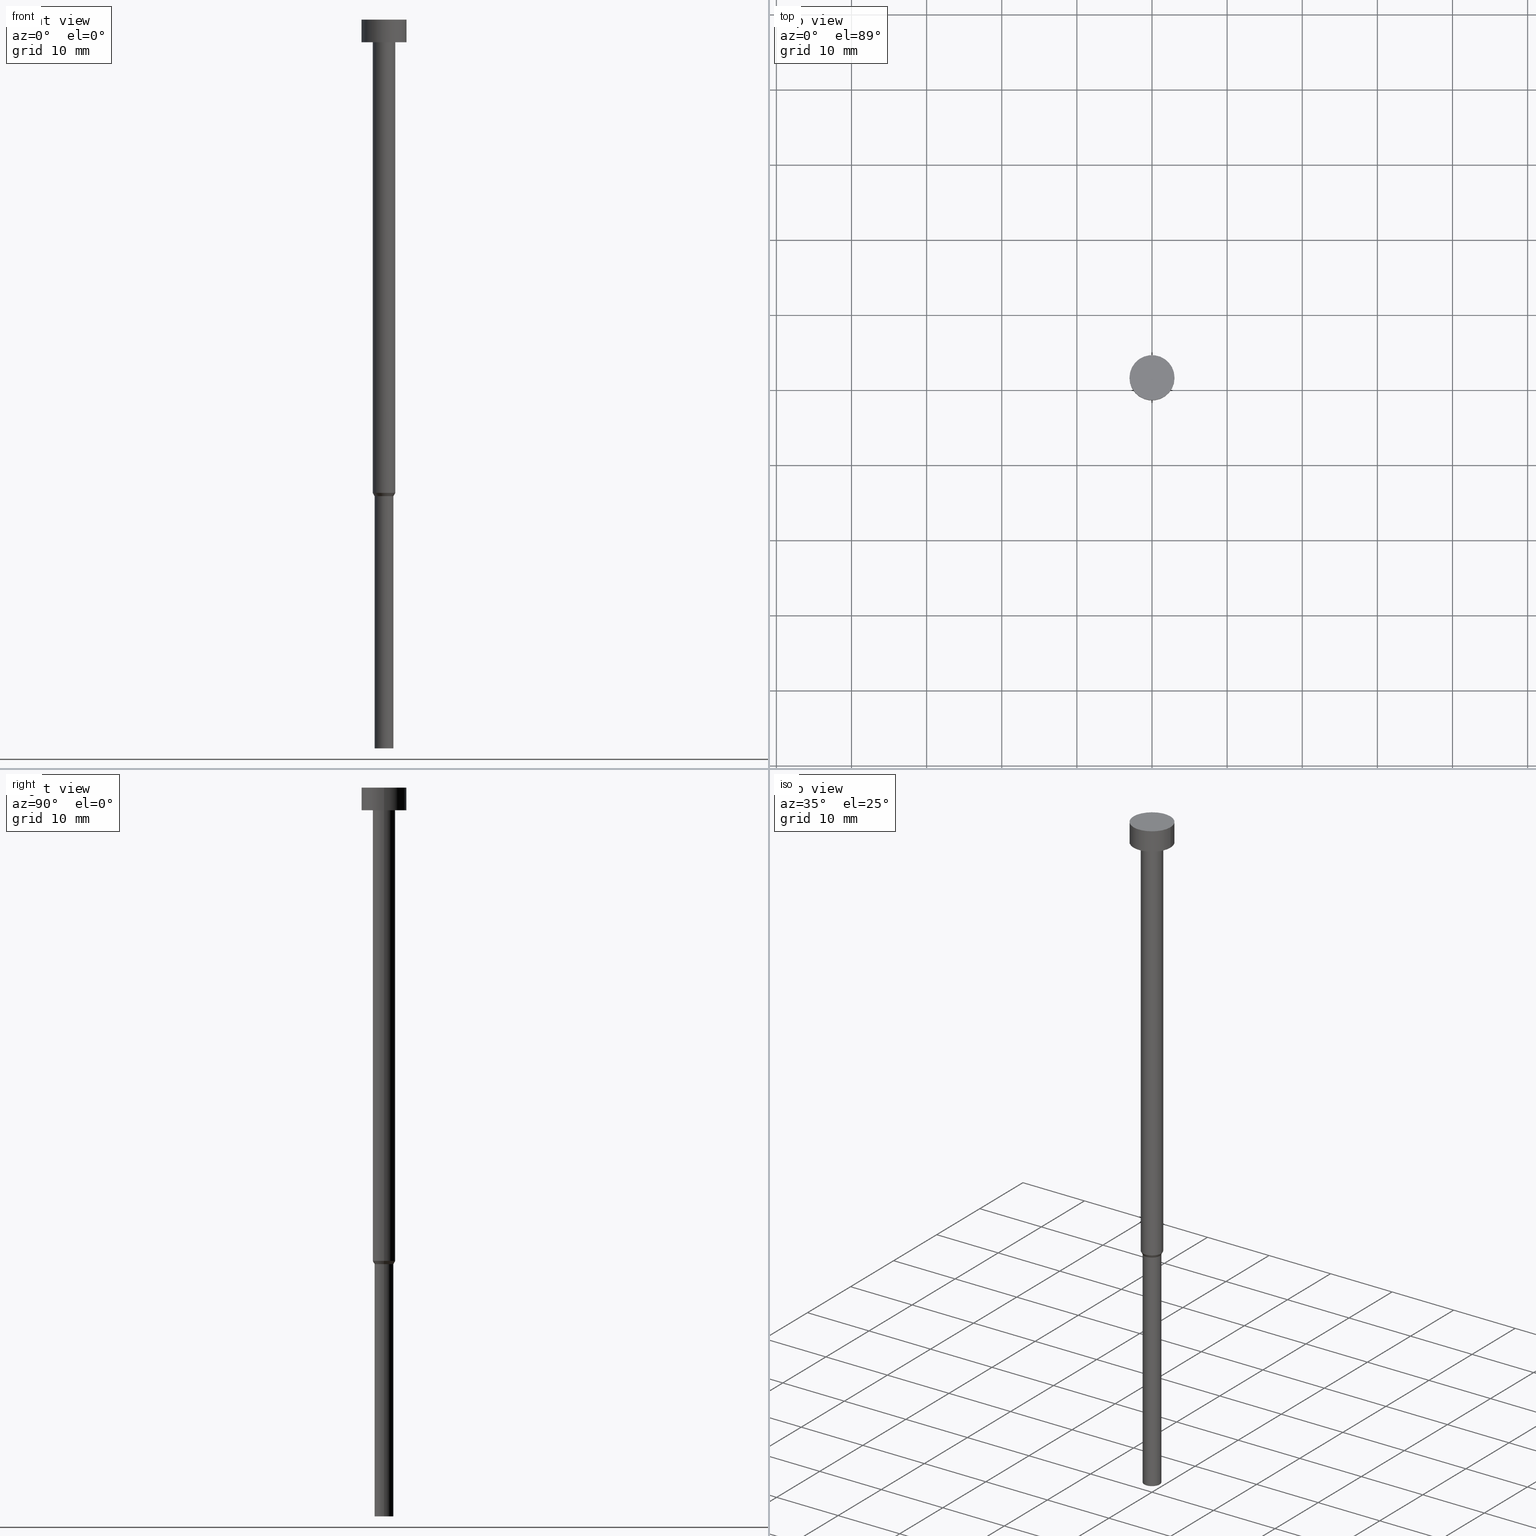
[diagram: canonical four-view strip — front | top / right | iso, engineering-drawing reading convention]
A machine part, canonical four-view strip (front | top / right | iso — engineering-drawing reading convention). The complete STEP part file that produces these views, byte-faithful:
ISO-10303-21;
HEADER;
FILE_DESCRIPTION (( 'STEP AP203' ),
    '1' );
FILE_NAME ('b03c.STEP',
    '2023-02-13T08:58:11',
    ( '' ),
    ( '' ),
    'SwSTEP 2.0',
    'SolidWorks 2019',
    '' );
FILE_SCHEMA (( 'CONFIG_CONTROL_DESIGN' ));
ENDSEC;

DATA;
#1 = CARTESIAN_POINT ( 'NONE',  ( 0.000000000000000000, 0.000000000000000000, -63.43301270189222407 ) ) ;
#2 = DIRECTION ( 'NONE',  ( -0.000000000000000000, -0.000000000000000000, 1.000000000000000000 ) ) ;
#3 = VERTEX_POINT ( 'NONE', #273 ) ;
#4 = AXIS2_PLACEMENT_3D ( 'NONE', #122, #143, #354 ) ;
#5 = CARTESIAN_POINT ( 'NONE',  ( -1.500000000000000000, 1.836970198721029934E-16, -3.000000000000000444 ) ) ;
#6 = APPLICATION_CONTEXT ( 'configuration controlled 3d designs of mechanical parts and assemblies' ) ;
#7 = ORIENTED_EDGE ( 'NONE', *, *, #355, .T. ) ;
#8 = DIRECTION ( 'NONE',  ( -0.000000000000000000, -0.000000000000000000, 1.000000000000000000 ) ) ;
#9 = DIRECTION ( 'NONE',  ( -0.000000000000000000, -0.000000000000000000, 1.000000000000000000 ) ) ;
#10 = CC_DESIGN_PERSON_AND_ORGANIZATION_ASSIGNMENT ( #333, #230, ( #262 ) ) ;
#11 = CARTESIAN_POINT ( 'NONE',  ( 3.000000000000000000, 0.000000000000000000, 0.000000000000000000 ) ) ;
#12 = AXIS2_PLACEMENT_3D ( 'NONE', #165, #223, #199 ) ;
#13 = ORIENTED_EDGE ( 'NONE', *, *, #355, .F. ) ;
#14 = ORIENTED_EDGE ( 'NONE', *, *, #34, .T. ) ;
#15 = ORIENTED_EDGE ( 'NONE', *, *, #261, .T. ) ;
#16 = CC_DESIGN_PERSON_AND_ORGANIZATION_ASSIGNMENT ( #28, #309, ( #256 ) ) ;
#17 = ORIENTED_EDGE ( 'NONE', *, *, #173, .T. ) ;
#18 = CC_DESIGN_SECURITY_CLASSIFICATION ( #262, ( #256 ) ) ;
#19 = CC_DESIGN_PERSON_AND_ORGANIZATION_ASSIGNMENT ( #137, #41, ( #85 ) ) ;
#20 = DIRECTION ( 'NONE',  ( -0.000000000000000000, -0.000000000000000000, 1.000000000000000000 ) ) ;
#21 = EDGE_CURVE ( 'NONE', #190, #239, #353, .T. ) ;
#22 = CARTESIAN_POINT ( 'NONE',  ( 1.500000000000000000, 0.000000000000000000, -63.00000000000000000 ) ) ;
#23 = CARTESIAN_POINT ( 'NONE',  ( 0.000000000000000000, 0.000000000000000000, 0.000000000000000000 ) ) ;
#24 = DIRECTION ( 'NONE',  ( -0.000000000000000000, -0.000000000000000000, 1.000000000000000000 ) ) ;
#25 = PLANE ( 'NONE',  #86 ) ;
#26 = CYLINDRICAL_SURFACE ( 'NONE', #115, 3.000000000000000000 ) ;
#27 = CARTESIAN_POINT ( 'NONE',  ( 0.000000000000000000, 0.000000000000000000, 0.000000000000000000 ) ) ;
#28 = PERSON_AND_ORGANIZATION ( #187, #294 ) ;
#29 = MANIFOLD_SOLID_BREP ( 'Rotovat1', #237 ) ;
#30 = CARTESIAN_POINT ( 'NONE',  ( 0.000000000000000000, 0.000000000000000000, -63.00000000000000000 ) ) ;
#31 = APPROVAL_DATE_TIME ( #288, #340 ) ;
#32 = ORIENTED_EDGE ( 'NONE', *, *, #235, .T. ) ;
#33 = LOCAL_TIME ( 9, 58, 11.00000000000000000, #233 ) ;
#34 = EDGE_CURVE ( 'NONE', #245, #99, #146, .T. ) ;
#35 = ORIENTED_EDGE ( 'NONE', *, *, #240, .T. ) ;
#36 = ORIENTED_EDGE ( 'NONE', *, *, #184, .F. ) ;
#37 = EDGE_CURVE ( 'NONE', #133, #190, #311, .T. ) ;
#38 = ORIENTED_EDGE ( 'NONE', *, *, #119, .F. ) ;
#39 = CARTESIAN_POINT ( 'NONE',  ( -1.250000000000000000, 1.530808498934191571E-16, -97.00000000000000000 ) ) ;
#40 = ORIENTED_EDGE ( 'NONE', *, *, #192, .F. ) ;
#41 = PERSON_AND_ORGANIZATION_ROLE ( 'design_owner' ) ;
#42 = CARTESIAN_POINT ( 'NONE',  ( 0.000000000000000000, 0.000000000000000000, -97.00000000000000000 ) ) ;
#43 = APPROVAL_ROLE ( '' ) ;
#44 = CIRCLE ( 'NONE', #228, 1.250000000000000000 ) ;
#45 = LOCAL_TIME ( 9, 58, 11.00000000000000000, #312 ) ;
#46 = CC_DESIGN_DATE_AND_TIME_ASSIGNMENT ( #283, #290, ( #262 ) ) ;
#47 = CARTESIAN_POINT ( 'NONE',  ( 0.000000000000000000, 0.000000000000000000, -97.00000000000000000 ) ) ;
#48 = CARTESIAN_POINT ( 'NONE',  ( 0.000000000000000000, 0.000000000000000000, -97.00000000000000000 ) ) ;
#49 = DIRECTION ( 'NONE',  ( -0.000000000000000000, -0.000000000000000000, 1.000000000000000000 ) ) ;
#50 = ADVANCED_FACE ( 'NONE', ( #109 ), #352, .T. ) ;
#51 = DIRECTION ( 'NONE',  ( -0.000000000000000000, -0.000000000000000000, 1.000000000000000000 ) ) ;
#52 = APPROVAL_PERSON_ORGANIZATION ( #220, #106, #43 ) ;
#53 = CARTESIAN_POINT ( 'NONE',  ( 0.000000000000000000, 0.000000000000000000, -3.673940397442059868E-16 ) ) ;
#54 = CARTESIAN_POINT ( 'NONE',  ( 3.000000000000000000, 0.000000000000000000, -3.000000000000000444 ) ) ;
#55 = CARTESIAN_POINT ( 'NONE',  ( 1.250000000000000000, 0.000000000000000000, 0.000000000000000000 ) ) ;
#56 = DIRECTION ( 'NONE',  ( -0.000000000000000000, -0.000000000000000000, 1.000000000000000000 ) ) ;
#57 = DIRECTION ( 'NONE',  ( -0.000000000000000000, -0.000000000000000000, 1.000000000000000000 ) ) ;
#58 = ORIENTED_EDGE ( 'NONE', *, *, #301, .F. ) ;
#59 = LOCAL_TIME ( 9, 58, 11.00000000000000000, #242 ) ;
#60 = VERTEX_POINT ( 'NONE', #327 ) ;
#61 = EDGE_CURVE ( 'NONE', #253, #3, #163, .T. ) ;
#62 = CYLINDRICAL_SURFACE ( 'NONE', #319, 1.500000000000000000 ) ;
#63 = EDGE_LOOP ( 'NONE', ( #260, #186, #193, #295 ) ) ;
#64 = AXIS2_PLACEMENT_3D ( 'NONE', #30, #84, #336 ) ;
#65 =( GEOMETRIC_REPRESENTATION_CONTEXT ( 3 ) GLOBAL_UNCERTAINTY_ASSIGNED_CONTEXT ( ( #268 ) ) GLOBAL_UNIT_ASSIGNED_CONTEXT ( ( #102, #156, #205 ) ) REPRESENTATION_CONTEXT ( 'NONE', 'WORKASPACE' ) );
#66 = LINE ( 'NONE', #215, #238 ) ;
#67 = SHAPE_DEFINITION_REPRESENTATION ( #323, #280 ) ;
#68 = CARTESIAN_POINT ( 'NONE',  ( 0.000000000000000000, 0.000000000000000000, 0.000000000000000000 ) ) ;
#69 = DIRECTION ( 'NONE',  ( 0.4999999999999981681, 0.000000000000000000, 0.8660254037844395958 ) ) ;
#70 = CIRCLE ( 'NONE', #176, 1.500000000000000000 ) ;
#71 = VERTEX_POINT ( 'NONE', #279 ) ;
#72 = DIRECTION ( 'NONE',  ( -0.000000000000000000, -0.000000000000000000, 1.000000000000000000 ) ) ;
#73 = DIRECTION ( 'NONE',  ( 1.000000000000000000, 0.000000000000000000, 0.000000000000000000 ) ) ;
#74 = AXIS2_PLACEMENT_3D ( 'NONE', #167, #139, #224 ) ;
#75 = AXIS2_PLACEMENT_3D ( 'NONE', #211, #308, #152 ) ;
#76 = DIRECTION ( 'NONE',  ( 0.000000000000000000, 0.000000000000000000, -1.000000000000000000 ) ) ;
#77 = CARTESIAN_POINT ( 'NONE',  ( -1.500000000000000000, 1.836970198721029934E-16, 0.000000000000000000 ) ) ;
#78 = EDGE_CURVE ( 'NONE', #99, #3, #82, .T. ) ;
#79 = PERSON_AND_ORGANIZATION_ROLE ( 'creator' ) ;
#80 = DIRECTION ( 'NONE',  ( -0.000000000000000000, -0.000000000000000000, 1.000000000000000000 ) ) ;
#81 = CARTESIAN_POINT ( 'NONE',  ( -1.500000000000000000, 1.836970198721029934E-16, -63.00000000000000000 ) ) ;
#82 = LINE ( 'NONE', #196, #188 ) ;
#83 = CARTESIAN_POINT ( 'NONE',  ( 0.000000000000000000, 0.000000000000000000, -63.43301270189222407 ) ) ;
#84 = DIRECTION ( 'NONE',  ( -0.000000000000000000, -0.000000000000000000, 1.000000000000000000 ) ) ;
#85 = PRODUCT ( 'b03c', 'b03c', '', ( #322 ) ) ;
#86 = AXIS2_PLACEMENT_3D ( 'NONE', #149, #254, #154 ) ;
#87 = COORDINATED_UNIVERSAL_TIME_OFFSET ( 1, 0, .AHEAD. ) ;
#88 = ORIENTED_EDGE ( 'NONE', *, *, #159, .F. ) ;
#89 = CIRCLE ( 'NONE', #151, 1.500000000000000000 ) ;
#90 = APPROVAL_PERSON_ORGANIZATION ( #284, #340, #212 ) ;
#91 = DIRECTION ( 'NONE',  ( 1.000000000000000000, 0.000000000000000000, 0.000000000000000000 ) ) ;
#92 = ORIENTED_EDGE ( 'NONE', *, *, #37, .F. ) ;
#93 = EDGE_CURVE ( 'NONE', #133, #132, #171, .T. ) ;
#94 = DIRECTION ( 'NONE',  ( -0.000000000000000000, -0.000000000000000000, 1.000000000000000000 ) ) ;
#95 = CARTESIAN_POINT ( 'NONE',  ( 0.000000000000000000, 0.000000000000000000, 0.000000000000000000 ) ) ;
#96 = AXIS2_PLACEMENT_3D ( 'NONE', #304, #306, #206 ) ;
#97 = EDGE_LOOP ( 'NONE', ( #36, #124, #32, #88 ) ) ;
#98 = CONICAL_SURFACE ( 'NONE', #127, 1.500000000000000000, 0.5235987755982968173 ) ;
#99 = VERTEX_POINT ( 'NONE', #303 ) ;
#100 = ORIENTED_EDGE ( 'NONE', *, *, #173, .F. ) ;
#101 = CARTESIAN_POINT ( 'NONE',  ( -1.250000000000000000, 1.530808498934191571E-16, 0.000000000000000000 ) ) ;
#102 =( LENGTH_UNIT ( ) NAMED_UNIT ( * ) SI_UNIT ( .MILLI., .METRE. ) );
#103 = DATE_AND_TIME ( #249, #219 ) ;
#104 = APPROVAL_ROLE ( '' ) ;
#105 = LINE ( 'NONE', #55, #182 ) ;
#106 = APPROVAL ( #348, 'NEUR�EN�' ) ;
#107 = DIRECTION ( 'NONE',  ( 1.000000000000000000, 0.000000000000000000, 0.000000000000000000 ) ) ;
#108 = PERSON_AND_ORGANIZATION_ROLE ( 'design_supplier' ) ;
#109 = FACE_OUTER_BOUND ( 'NONE', #97, .T. ) ;
#110 = CYLINDRICAL_SURFACE ( 'NONE', #255, 1.250000000000000000 ) ;
#111 = EDGE_LOOP ( 'NONE', ( #126, #157, #13, #269 ) ) ;
#112 = DIRECTION ( 'NONE',  ( 0.000000000000000000, -0.000000000000000000, 1.000000000000000000 ) ) ;
#113 = CALENDAR_DATE ( 2023, 13, 2 ) ;
#114 = DIRECTION ( 'NONE',  ( -0.000000000000000000, -0.000000000000000000, 1.000000000000000000 ) ) ;
#115 = AXIS2_PLACEMENT_3D ( 'NONE', #27, #8, #285 ) ;
#116 = DIRECTION ( 'NONE',  ( 1.000000000000000000, 0.000000000000000000, 0.000000000000000000 ) ) ;
#117 = CC_DESIGN_APPROVAL ( #274, ( #148 ) ) ;
#118 = ORIENTED_EDGE ( 'NONE', *, *, #78, .T. ) ;
#119 = EDGE_CURVE ( 'NONE', #202, #71, #232, .T. ) ;
#120 = CARTESIAN_POINT ( 'NONE',  ( 0.000000000000000000, 0.000000000000000000, -3.673940397442059868E-16 ) ) ;
#121 = SECURITY_CLASSIFICATION_LEVEL ( 'unclassified' ) ;
#122 = CARTESIAN_POINT ( 'NONE',  ( 0.000000000000000000, 0.000000000000000000, -63.00000000000000000 ) ) ;
#123 = ORIENTED_EDGE ( 'NONE', *, *, #159, .T. ) ;
#124 = ORIENTED_EDGE ( 'NONE', *, *, #119, .T. ) ;
#125 = VECTOR ( 'NONE', #326, 1000.000000000000000 ) ;
#126 = ORIENTED_EDGE ( 'NONE', *, *, #192, .T. ) ;
#127 = AXIS2_PLACEMENT_3D ( 'NONE', #147, #51, #116 ) ;
#128 = DIRECTION ( 'NONE',  ( 1.000000000000000000, 0.000000000000000000, 0.000000000000000000 ) ) ;
#129 = CC_DESIGN_APPROVAL ( #340, ( #262 ) ) ;
#130 = CC_DESIGN_PERSON_AND_ORGANIZATION_ASSIGNMENT ( #198, #108, ( #256 ) ) ;
#131 = EDGE_LOOP ( 'NONE', ( #40, #38 ) ) ;
#132 = VERTEX_POINT ( 'NONE', #331 ) ;
#133 = VERTEX_POINT ( 'NONE', #22 ) ;
#134 = APPROVAL_STATUS ( 'not_yet_approved' ) ;
#135 = ADVANCED_FACE ( 'NONE', ( #142 ), #278, .T. ) ;
#136 = EDGE_LOOP ( 'NONE', ( #271, #266, #263, #318 ) ) ;
#137 = PERSON_AND_ORGANIZATION ( #187, #294 ) ;
#138 = PLANE ( 'NONE',  #305 ) ;
#139 = DIRECTION ( 'NONE',  ( -0.000000000000000000, -0.000000000000000000, 1.000000000000000000 ) ) ;
#140 = AXIS2_PLACEMENT_3D ( 'NONE', #120, #153, #329 ) ;
#141 = COORDINATED_UNIVERSAL_TIME_OFFSET ( 1, 0, .AHEAD. ) ;
#142 = FACE_OUTER_BOUND ( 'NONE', #316, .T. ) ;
#143 = DIRECTION ( 'NONE',  ( -0.000000000000000000, -0.000000000000000000, 1.000000000000000000 ) ) ;
#144 = DIRECTION ( 'NONE',  ( -0.000000000000000000, -0.000000000000000000, 1.000000000000000000 ) ) ;
#145 = DIRECTION ( 'NONE',  ( 1.000000000000000000, 0.000000000000000000, 0.000000000000000000 ) ) ;
#146 = CIRCLE ( 'NONE', #96, 3.000000000000000000 ) ;
#147 = CARTESIAN_POINT ( 'NONE',  ( 0.000000000000000000, 0.000000000000000000, -63.00000000000000000 ) ) ;
#148 = PRODUCT_DEFINITION ( 'NEZN�M�', '', #256, #160 ) ;
#149 = CARTESIAN_POINT ( 'NONE',  ( 0.000000000000000000, -3.000000000000000000, -3.000000000000000444 ) ) ;
#150 = DIRECTION ( 'NONE',  ( -0.4999999999999981681, 6.123233995736742617E-17, 0.8660254037844395958 ) ) ;
#151 = AXIS2_PLACEMENT_3D ( 'NONE', #302, #166, #107 ) ;
#152 = DIRECTION ( 'NONE',  ( 1.000000000000000000, 0.000000000000000000, 0.000000000000000000 ) ) ;
#153 = DIRECTION ( 'NONE',  ( -0.000000000000000000, -0.000000000000000000, 1.000000000000000000 ) ) ;
#154 = DIRECTION ( 'NONE',  ( -1.000000000000000000, 0.000000000000000000, -0.000000000000000000 ) ) ;
#155 = VECTOR ( 'NONE', #150, 1000.000000000000114 ) ;
#156 =( NAMED_UNIT ( * ) PLANE_ANGLE_UNIT ( ) SI_UNIT ( $, .RADIAN. ) );
#157 = ORIENTED_EDGE ( 'NONE', *, *, #184, .T. ) ;
#158 = EDGE_LOOP ( 'NONE', ( #209, #123, #185, #234 ) ) ;
#159 = EDGE_CURVE ( 'NONE', #60, #335, #350, .T. ) ;
#160 = DESIGN_CONTEXT ( 'detailed design', #6, 'design' ) ;
#161 = ADVANCED_FACE ( 'NONE', ( #307, #174 ), #25, .T. ) ;
#162 = PERSON_AND_ORGANIZATION ( #187, #294 ) ;
#163 = CIRCLE ( 'NONE', #275, 3.000000000000000000 ) ;
#164 = DIRECTION ( 'NONE',  ( 1.000000000000000000, 0.000000000000000000, 0.000000000000000000 ) ) ;
#165 = CARTESIAN_POINT ( 'NONE',  ( 0.000000000000000000, 0.000000000000000000, 0.000000000000000000 ) ) ;
#166 = DIRECTION ( 'NONE',  ( -0.000000000000000000, -0.000000000000000000, 1.000000000000000000 ) ) ;
#167 = CARTESIAN_POINT ( 'NONE',  ( 0.000000000000000000, 0.000000000000000000, -63.00000000000000000 ) ) ;
#168 = VECTOR ( 'NONE', #94, 1000.000000000000000 ) ;
#169 = DIRECTION ( 'NONE',  ( 1.000000000000000000, 0.000000000000000000, 0.000000000000000000 ) ) ;
#170 = CIRCLE ( 'NONE', #64, 1.500000000000000000 ) ;
#171 = LINE ( 'NONE', #252, #221 ) ;
#172 = CARTESIAN_POINT ( 'NONE',  ( 0.000000000000000000, 0.000000000000000000, 0.000000000000000000 ) ) ;
#173 = EDGE_CURVE ( 'NONE', #245, #253, #231, .T. ) ;
#174 = FACE_OUTER_BOUND ( 'NONE', #213, .T. ) ;
#175 = DIRECTION ( 'NONE',  ( 1.000000000000000000, 0.000000000000000000, 0.000000000000000000 ) ) ;
#176 = AXIS2_PLACEMENT_3D ( 'NONE', #229, #57, #91 ) ;
#177 = APPLICATION_PROTOCOL_DEFINITION ( 'international standard', 'config_control_design', 1994, #324 ) ;
#178 = ADVANCED_FACE ( 'NONE', ( #181 ), #236, .T. ) ;
#179 = CALENDAR_DATE ( 2023, 13, 2 ) ;
#180 = ORIENTED_EDGE ( 'NONE', *, *, #261, .F. ) ;
#181 = FACE_OUTER_BOUND ( 'NONE', #63, .T. ) ;
#182 = VECTOR ( 'NONE', #24, 1000.000000000000000 ) ;
#183 = CC_DESIGN_APPROVAL ( #106, ( #256 ) ) ;
#184 = EDGE_CURVE ( 'NONE', #202, #60, #349, .T. ) ;
#185 = ORIENTED_EDGE ( 'NONE', *, *, #207, .T. ) ;
#186 = ORIENTED_EDGE ( 'NONE', *, *, #258, .T. ) ;
#187 = PERSON ( 'NEUR�EN�', 'NEUR�EN�', 'NEUR�EN�', ('NEUR�EN�'), ('NEUR�EN�'), ('NEUR�EN�') ) ;
#188 = VECTOR ( 'NONE', #56, 1000.000000000000000 ) ;
#189 = DIRECTION ( 'NONE',  ( 0.000000000000000000, 0.000000000000000000, 1.000000000000000000 ) ) ;
#190 = VERTEX_POINT ( 'NONE', #264 ) ;
#191 = FACE_OUTER_BOUND ( 'NONE', #320, .T. ) ;
#192 = EDGE_CURVE ( 'NONE', #71, #202, #265, .T. ) ;
#193 = ORIENTED_EDGE ( 'NONE', *, *, #93, .T. ) ;
#194 = CC_DESIGN_PERSON_AND_ORGANIZATION_ASSIGNMENT ( #244, #79, ( #148 ) ) ;
#195 = DIRECTION ( 'NONE',  ( 1.000000000000000000, 0.000000000000000000, 0.000000000000000000 ) ) ;
#196 = CARTESIAN_POINT ( 'NONE',  ( -3.000000000000000000, 3.673940397442059868E-16, 0.000000000000000000 ) ) ;
#197 = DIRECTION ( 'NONE',  ( 1.000000000000000000, 0.000000000000000000, 0.000000000000000000 ) ) ;
#198 = PERSON_AND_ORGANIZATION ( #187, #294 ) ;
#199 = DIRECTION ( 'NONE',  ( 1.000000000000000000, 0.000000000000000000, 0.000000000000000000 ) ) ;
#200 = CC_DESIGN_DATE_AND_TIME_ASSIGNMENT ( #103, #270, ( #148 ) ) ;
#201 = VECTOR ( 'NONE', #300, 1000.000000000000000 ) ;
#202 = VERTEX_POINT ( 'NONE', #39 ) ;
#203 = DIRECTION ( 'NONE',  ( -1.000000000000000000, 0.000000000000000000, -0.000000000000000000 ) ) ;
#204 = DIRECTION ( 'NONE',  ( -0.000000000000000000, -0.000000000000000000, 1.000000000000000000 ) ) ;
#205 =( NAMED_UNIT ( * ) SI_UNIT ( $, .STERADIAN. ) SOLID_ANGLE_UNIT ( ) );
#206 = DIRECTION ( 'NONE',  ( 1.000000000000000000, 0.000000000000000000, 0.000000000000000000 ) ) ;
#207 = EDGE_CURVE ( 'NONE', #335, #133, #66, .T. ) ;
#208 = AXIS2_PLACEMENT_3D ( 'NONE', #250, #80, #145 ) ;
#209 = ORIENTED_EDGE ( 'NONE', *, *, #298, .F. ) ;
#210 = AXIS2_PLACEMENT_3D ( 'NONE', #42, #343, #164 ) ;
#211 = CARTESIAN_POINT ( 'NONE',  ( 0.000000000000000000, 0.000000000000000000, -3.000000000000000444 ) ) ;
#212 = APPROVAL_ROLE ( '' ) ;
#213 = EDGE_LOOP ( 'NONE', ( #330, #58 ) ) ;
#214 = ADVANCED_FACE ( 'NONE', ( #191 ), #296, .T. ) ;
#215 = CARTESIAN_POINT ( 'NONE',  ( 1.500000000000000000, 0.000000000000000000, -63.00000000000000000 ) ) ;
#216 = ADVANCED_FACE ( 'NONE', ( #226 ), #138, .T. ) ;
#217 = ORIENTED_EDGE ( 'NONE', *, *, #298, .T. ) ;
#218 = EDGE_LOOP ( 'NONE', ( #337, #35 ) ) ;
#219 = LOCAL_TIME ( 9, 58, 11.00000000000000000, #141 ) ;
#220 = PERSON_AND_ORGANIZATION ( #187, #294 ) ;
#221 = VECTOR ( 'NONE', #49, 1000.000000000000000 ) ;
#222 = PRODUCT_RELATED_PRODUCT_CATEGORY ( 'detail', '', ( #85 ) ) ;
#223 = DIRECTION ( 'NONE',  ( -0.000000000000000000, -0.000000000000000000, 1.000000000000000000 ) ) ;
#224 = DIRECTION ( 'NONE',  ( 1.000000000000000000, 0.000000000000000000, 0.000000000000000000 ) ) ;
#225 = FACE_OUTER_BOUND ( 'NONE', #111, .T. ) ;
#226 = FACE_OUTER_BOUND ( 'NONE', #131, .T. ) ;
#227 = DIRECTION ( 'NONE',  ( 1.000000000000000000, 0.000000000000000000, 0.000000000000000000 ) ) ;
#228 = AXIS2_PLACEMENT_3D ( 'NONE', #83, #144, #73 ) ;
#229 = CARTESIAN_POINT ( 'NONE',  ( 0.000000000000000000, 0.000000000000000000, -3.000000000000000444 ) ) ;
#230 = PERSON_AND_ORGANIZATION_ROLE ( 'classification_officer' ) ;
#231 = LINE ( 'NONE', #11, #168 ) ;
#232 = CIRCLE ( 'NONE', #338, 1.250000000000000000 ) ;
#233 = COORDINATED_UNIVERSAL_TIME_OFFSET ( 1, 0, .AHEAD. ) ;
#234 = ORIENTED_EDGE ( 'NONE', *, *, #258, .F. ) ;
#235 = EDGE_CURVE ( 'NONE', #71, #335, #105, .T. ) ;
#236 = CYLINDRICAL_SURFACE ( 'NONE', #293, 1.500000000000000000 ) ;
#237 = CLOSED_SHELL ( 'NONE', ( #272, #243, #321, #332, #216, #50, #344, #178, #161, #135, #214 ) ) ;
#238 = VECTOR ( 'NONE', #69, 1000.000000000000114 ) ;
#239 = VERTEX_POINT ( 'NONE', #5 ) ;
#240 = EDGE_CURVE ( 'NONE', #239, #132, #89, .T. ) ;
#241 = ORIENTED_EDGE ( 'NONE', *, *, #61, .T. ) ;
#242 = COORDINATED_UNIVERSAL_TIME_OFFSET ( 1, 0, .AHEAD. ) ;
#243 = ADVANCED_FACE ( 'NONE', ( #341 ), #62, .T. ) ;
#244 = PERSON_AND_ORGANIZATION ( #187, #294 ) ;
#245 = VERTEX_POINT ( 'NONE', #54 ) ;
#246 = APPLICATION_PROTOCOL_DEFINITION ( 'international standard', 'config_control_design', 1994, #6 ) ;
#247 = AXIS2_PLACEMENT_3D ( 'NONE', #1, #114, #227 ) ;
#248 = CIRCLE ( 'NONE', #140, 3.000000000000000000 ) ;
#249 = CALENDAR_DATE ( 2023, 13, 2 ) ;
#250 = CARTESIAN_POINT ( 'NONE',  ( 0.000000000000000000, 0.000000000000000000, 0.000000000000000000 ) ) ;
#251 = FACE_OUTER_BOUND ( 'NONE', #267, .T. ) ;
#252 = CARTESIAN_POINT ( 'NONE',  ( 1.500000000000000000, 0.000000000000000000, 0.000000000000000000 ) ) ;
#253 = VERTEX_POINT ( 'NONE', #334 ) ;
#254 = DIRECTION ( 'NONE',  ( 0.000000000000000000, 0.000000000000000000, -1.000000000000000000 ) ) ;
#255 = AXIS2_PLACEMENT_3D ( 'NONE', #23, #9, #317 ) ;
#256 = PRODUCT_DEFINITION_FORMATION_WITH_SPECIFIED_SOURCE ( 'LIBOVOLN�', '', #85, .NOT_KNOWN. ) ;
#257 = APPROVAL_DATE_TIME ( #281, #106 ) ;
#258 = EDGE_CURVE ( 'NONE', #190, #133, #170, .T. ) ;
#259 = FACE_OUTER_BOUND ( 'NONE', #287, .T. ) ;
#260 = ORIENTED_EDGE ( 'NONE', *, *, #21, .F. ) ;
#261 = EDGE_CURVE ( 'NONE', #3, #253, #248, .T. ) ;
#262 = SECURITY_CLASSIFICATION ( '', '', #121 ) ;
#263 = ORIENTED_EDGE ( 'NONE', *, *, #286, .F. ) ;
#264 = CARTESIAN_POINT ( 'NONE',  ( -1.500000000000000000, 1.836970198721029934E-16, -63.00000000000000000 ) ) ;
#265 = CIRCLE ( 'NONE', #210, 1.250000000000000000 ) ;
#266 = ORIENTED_EDGE ( 'NONE', *, *, #21, .T. ) ;
#267 = EDGE_LOOP ( 'NONE', ( #14, #118, #297, #100 ) ) ;
#268 = UNCERTAINTY_MEASURE_WITH_UNIT (LENGTH_MEASURE( 1.000000000000000082E-05 ), #102, 'distance_accuracy_value', 'NONE');
#269 = ORIENTED_EDGE ( 'NONE', *, *, #235, .F. ) ;
#270 = DATE_TIME_ROLE ( 'creation_date' ) ;
#271 = ORIENTED_EDGE ( 'NONE', *, *, #37, .T. ) ;
#272 = ADVANCED_FACE ( 'NONE', ( #251 ), #26, .T. ) ;
#273 = CARTESIAN_POINT ( 'NONE',  ( -3.000000000000000000, 3.673940397442059868E-16, -3.673940397442059868E-16 ) ) ;
#274 = APPROVAL ( #134, 'NEUR�EN�' ) ;
#275 = AXIS2_PLACEMENT_3D ( 'NONE', #53, #204, #197 ) ;
#276 = CIRCLE ( 'NONE', #75, 3.000000000000000000 ) ;
#277 = APPROVAL_DATE_TIME ( #351, #274 ) ;
#278 = CYLINDRICAL_SURFACE ( 'NONE', #208, 3.000000000000000000 ) ;
#279 = CARTESIAN_POINT ( 'NONE',  ( 1.250000000000000000, 0.000000000000000000, -97.00000000000000000 ) ) ;
#280 = ADVANCED_BREP_SHAPE_REPRESENTATION ( 'b03c', ( #29, #347 ), #65 ) ;
#281 = DATE_AND_TIME ( #113, #33 ) ;
#282 = LINE ( 'NONE', #81, #155 ) ;
#283 = DATE_AND_TIME ( #179, #315 ) ;
#284 = PERSON_AND_ORGANIZATION ( #187, #294 ) ;
#285 = DIRECTION ( 'NONE',  ( 1.000000000000000000, 0.000000000000000000, 0.000000000000000000 ) ) ;
#286 = EDGE_CURVE ( 'NONE', #132, #239, #70, .T. ) ;
#287 = EDGE_LOOP ( 'NONE', ( #7, #217, #92, #289 ) ) ;
#288 = DATE_AND_TIME ( #342, #45 ) ;
#289 = ORIENTED_EDGE ( 'NONE', *, *, #207, .F. ) ;
#290 = DATE_TIME_ROLE ( 'classification_date' ) ;
#291 = CARTESIAN_POINT ( 'NONE',  ( 1.250000000000000000, 0.000000000000000000, -63.43301270189222407 ) ) ;
#292 = DIRECTION ( 'NONE',  ( 1.000000000000000000, 0.000000000000000000, 0.000000000000000000 ) ) ;
#293 = AXIS2_PLACEMENT_3D ( 'NONE', #95, #72, #128 ) ;
#294 = ORGANIZATION ( 'NEUR�EN�', 'NEUR�EN�', '' ) ;
#295 = ORIENTED_EDGE ( 'NONE', *, *, #240, .F. ) ;
#296 = PLANE ( 'NONE',  #346 ) ;
#297 = ORIENTED_EDGE ( 'NONE', *, *, #61, .F. ) ;
#298 = EDGE_CURVE ( 'NONE', #60, #190, #282, .T. ) ;
#299 = CALENDAR_DATE ( 2023, 13, 2 ) ;
#300 = DIRECTION ( 'NONE',  ( -0.000000000000000000, -0.000000000000000000, 1.000000000000000000 ) ) ;
#301 = EDGE_CURVE ( 'NONE', #99, #245, #276, .T. ) ;
#302 = CARTESIAN_POINT ( 'NONE',  ( 0.000000000000000000, 0.000000000000000000, -3.000000000000000444 ) ) ;
#303 = CARTESIAN_POINT ( 'NONE',  ( -3.000000000000000000, 3.673940397442059868E-16, -3.000000000000000444 ) ) ;
#304 = CARTESIAN_POINT ( 'NONE',  ( 0.000000000000000000, 0.000000000000000000, -3.000000000000000444 ) ) ;
#305 = AXIS2_PLACEMENT_3D ( 'NONE', #48, #76, #203 ) ;
#306 = DIRECTION ( 'NONE',  ( -0.000000000000000000, -0.000000000000000000, 1.000000000000000000 ) ) ;
#307 = FACE_BOUND ( 'NONE', #218, .T. ) ;
#308 = DIRECTION ( 'NONE',  ( -0.000000000000000000, -0.000000000000000000, 1.000000000000000000 ) ) ;
#309 = PERSON_AND_ORGANIZATION_ROLE ( 'creator' ) ;
#310 = FACE_OUTER_BOUND ( 'NONE', #158, .T. ) ;
#311 = CIRCLE ( 'NONE', #74, 1.500000000000000000 ) ;
#312 = COORDINATED_UNIVERSAL_TIME_OFFSET ( 1, 0, .AHEAD. ) ;
#313 = ORIENTED_EDGE ( 'NONE', *, *, #78, .F. ) ;
#314 = CONICAL_SURFACE ( 'NONE', #4, 1.500000000000000000, 0.5235987755982968173 ) ;
#315 = LOCAL_TIME ( 9, 58, 11.00000000000000000, #87 ) ;
#316 = EDGE_LOOP ( 'NONE', ( #313, #345, #17, #180 ) ) ;
#317 = DIRECTION ( 'NONE',  ( 1.000000000000000000, 0.000000000000000000, 0.000000000000000000 ) ) ;
#318 = ORIENTED_EDGE ( 'NONE', *, *, #93, .F. ) ;
#319 = AXIS2_PLACEMENT_3D ( 'NONE', #172, #2, #175 ) ;
#320 = EDGE_LOOP ( 'NONE', ( #241, #15 ) ) ;
#321 = ADVANCED_FACE ( 'NONE', ( #259 ), #314, .T. ) ;
#322 = MECHANICAL_CONTEXT ( 'NONE', #324, 'mechanical' ) ;
#323 = PRODUCT_DEFINITION_SHAPE ( 'NONE', 'NONE',  #148 ) ;
#324 = APPLICATION_CONTEXT ( 'configuration controlled 3d designs of mechanical parts and assemblies' ) ;
#325 = APPROVAL_PERSON_ORGANIZATION ( #162, #274, #104 ) ;
#326 = DIRECTION ( 'NONE',  ( -0.000000000000000000, -0.000000000000000000, 1.000000000000000000 ) ) ;
#327 = CARTESIAN_POINT ( 'NONE',  ( -1.250000000000000000, 1.530808498934191571E-16, -63.43301270189222407 ) ) ;
#328 = CARTESIAN_POINT ( 'NONE',  ( 0.000000000000000000, 0.000000000000000000, -1.836970198721029934E-16 ) ) ;
#329 = DIRECTION ( 'NONE',  ( 1.000000000000000000, 0.000000000000000000, 0.000000000000000000 ) ) ;
#330 = ORIENTED_EDGE ( 'NONE', *, *, #34, .F. ) ;
#331 = CARTESIAN_POINT ( 'NONE',  ( 1.500000000000000000, 0.000000000000000000, -3.000000000000000444 ) ) ;
#332 = ADVANCED_FACE ( 'NONE', ( #225 ), #110, .T. ) ;
#333 = PERSON_AND_ORGANIZATION ( #187, #294 ) ;
#334 = CARTESIAN_POINT ( 'NONE',  ( 3.000000000000000000, 0.000000000000000000, -3.673940397442059868E-16 ) ) ;
#335 = VERTEX_POINT ( 'NONE', #291 ) ;
#336 = DIRECTION ( 'NONE',  ( 1.000000000000000000, 0.000000000000000000, 0.000000000000000000 ) ) ;
#337 = ORIENTED_EDGE ( 'NONE', *, *, #286, .T. ) ;
#338 = AXIS2_PLACEMENT_3D ( 'NONE', #47, #20, #169 ) ;
#339 = APPROVAL_STATUS ( 'not_yet_approved' ) ;
#340 = APPROVAL ( #339, 'NEUR�EN�' ) ;
#341 = FACE_OUTER_BOUND ( 'NONE', #136, .T. ) ;
#342 = CALENDAR_DATE ( 2023, 13, 2 ) ;
#343 = DIRECTION ( 'NONE',  ( -0.000000000000000000, -0.000000000000000000, 1.000000000000000000 ) ) ;
#344 = ADVANCED_FACE ( 'NONE', ( #310 ), #98, .T. ) ;
#345 = ORIENTED_EDGE ( 'NONE', *, *, #301, .T. ) ;
#346 = AXIS2_PLACEMENT_3D ( 'NONE', #328, #112, #195 ) ;
#347 = AXIS2_PLACEMENT_3D ( 'NONE', #68, #189, #292 ) ;
#348 = APPROVAL_STATUS ( 'not_yet_approved' ) ;
#349 = LINE ( 'NONE', #101, #201 ) ;
#350 = CIRCLE ( 'NONE', #247, 1.250000000000000000 ) ;
#351 = DATE_AND_TIME ( #299, #59 ) ;
#352 = CYLINDRICAL_SURFACE ( 'NONE', #12, 1.250000000000000000 ) ;
#353 = LINE ( 'NONE', #77, #125 ) ;
#354 = DIRECTION ( 'NONE',  ( 1.000000000000000000, 0.000000000000000000, 0.000000000000000000 ) ) ;
#355 = EDGE_CURVE ( 'NONE', #335, #60, #44, .T. ) ;
ENDSEC;
END-ISO-10303-21;
